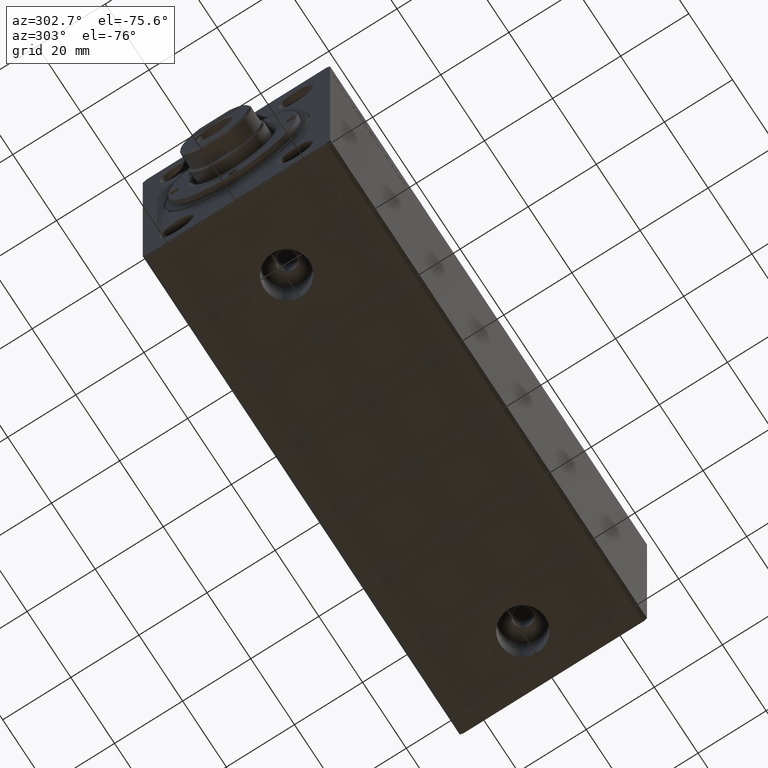
[diagram: clean part render]
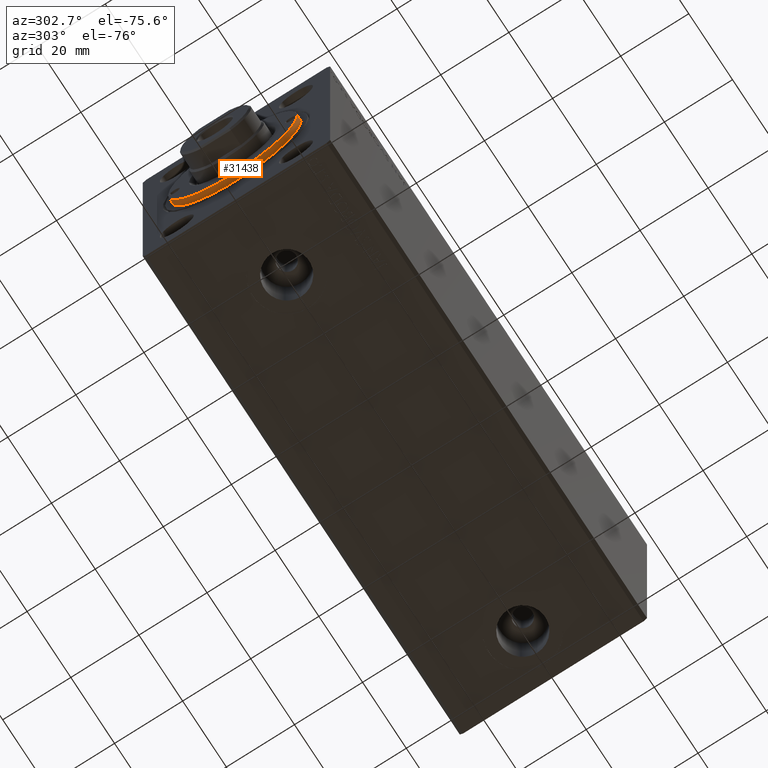
[diagram: same view with one face highlighted and labeled with its STEP entity id]
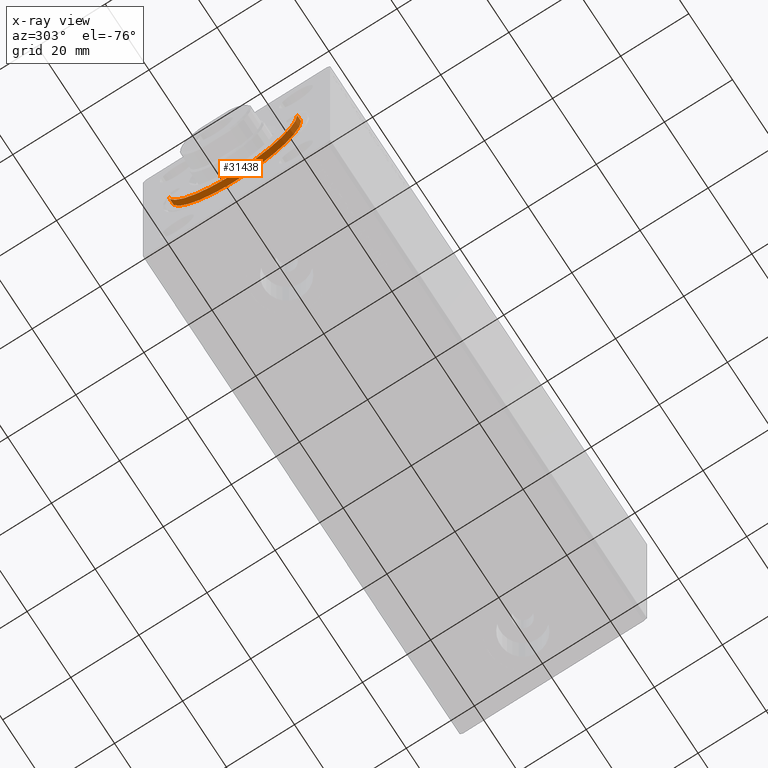
[diagram: x-ray of the same camera — body ghosted, the highlighted face saturated]
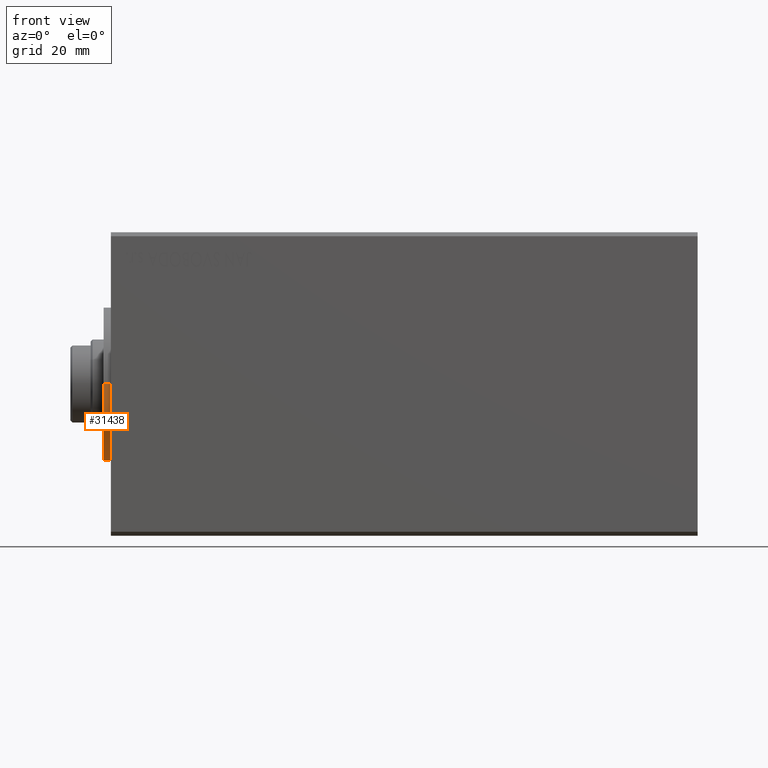
[diagram: same view with one face highlighted and labeled with its STEP entity id]
A machine part, auxiliary view. The second image highlights one B-rep face of the part: STEP entity #31438.
The next image is the same camera in x-ray: the body ghosted, the highlighted face saturated — about 0% of this face is hidden behind the body in this view.
A second angle (front view) of the same face is appended — the face is thin or edge-on in the first view.
In plain terms, the highlighted cylindrical surface (partial cylindrical patch) has radius 19 mm, axis along (1, -0, 0).
Its self-contained STEP definition (entity closure, byte-faithful):
#1752 = CIRCLE ( 'NONE', #5288, 19.00000000000000000 ) ;
#1802 = DIRECTION ( 'NONE',  ( -0.000000000000000000, -0.000000000000000000, -1.000000000000000000 ) ) ;
#2923 = CARTESIAN_POINT ( 'NONE',  ( 0.000000000000000000, 0.000000000000000000, 9.999999999999998224 ) ) ;
#4878 = EDGE_CURVE ( 'NONE', #8007, #43365, #32784, .T. ) ;
#5288 = AXIS2_PLACEMENT_3D ( 'NONE', #23741, #9491, #20173 ) ;
#7106 = CARTESIAN_POINT ( 'NONE',  ( 19.00000000000000000, 2.326828918379970970E-15, 9.999999999999998224 ) ) ;
#8007 = VERTEX_POINT ( 'NONE', #42375 ) ;
#9287 = CYLINDRICAL_SURFACE ( 'NONE', #11682, 19.00000000000000000 ) ;
#9491 = DIRECTION ( 'NONE',  ( 0.000000000000000000, 0.000000000000000000, 1.000000000000000000 ) ) ;
#11682 = AXIS2_PLACEMENT_3D ( 'NONE', #12858, #33138, #15734 ) ;
#11775 = EDGE_CURVE ( 'NONE', #17870, #8007, #30064, .T. ) ;
#12411 = VECTOR ( 'NONE', #32895, 1000.000000000000000 ) ;
#12858 = CARTESIAN_POINT ( 'NONE',  ( 0.000000000000000000, 0.000000000000000000, 9.999999999999998224 ) ) ;
#14287 = EDGE_CURVE ( 'NONE', #17870, #38912, #33349, .T. ) ;
#15734 = DIRECTION ( 'NONE',  ( -1.000000000000000000, 0.000000000000000000, 0.000000000000000000 ) ) ;
#16735 = DIRECTION ( 'NONE',  ( 1.000000000000000000, 0.000000000000000000, 0.000000000000000000 ) ) ;
#17814 = EDGE_LOOP ( 'NONE', ( #37480, #37804, #37590, #28000 ) ) ;
#17870 = VERTEX_POINT ( 'NONE', #7106 ) ;
#19400 = CARTESIAN_POINT ( 'NONE',  ( -19.00000000000000000, 0.000000000000000000, 9.999999999999998224 ) ) ;
#20173 = DIRECTION ( 'NONE',  ( 1.000000000000000000, 0.000000000000000000, 0.000000000000000000 ) ) ;
#22217 = AXIS2_PLACEMENT_3D ( 'NONE', #2923, #34337, #16735 ) ;
#23741 = CARTESIAN_POINT ( 'NONE',  ( 0.000000000000000000, 0.000000000000000000, 8.199999999999999289 ) ) ;
#28000 = ORIENTED_EDGE ( 'NONE', *, *, #4878, .F. ) ;
#30064 = CIRCLE ( 'NONE', #22217, 19.00000000000000000 ) ;
#31438 = ADVANCED_FACE ( 'NONE', ( #43660 ), #9287, .T. ) ;
#32784 = LINE ( 'NONE', #19400, #37734 ) ;
#32895 = DIRECTION ( 'NONE',  ( -0.000000000000000000, -0.000000000000000000, -1.000000000000000000 ) ) ;
#33138 = DIRECTION ( 'NONE',  ( -0.000000000000000000, -0.000000000000000000, -1.000000000000000000 ) ) ;
#33349 = LINE ( 'NONE', #39611, #12411 ) ;
#34337 = DIRECTION ( 'NONE',  ( 0.000000000000000000, 0.000000000000000000, 1.000000000000000000 ) ) ;
#36054 = CARTESIAN_POINT ( 'NONE',  ( 19.00000000000000000, 2.326828918379970970E-15, 8.199999999999999289 ) ) ;
#37480 = ORIENTED_EDGE ( 'NONE', *, *, #11775, .F. ) ;
#37590 = ORIENTED_EDGE ( 'NONE', *, *, #37752, .T. ) ;
#37734 = VECTOR ( 'NONE', #1802, 1000.000000000000000 ) ;
#37752 = EDGE_CURVE ( 'NONE', #38912, #43365, #1752, .T. ) ;
#37804 = ORIENTED_EDGE ( 'NONE', *, *, #14287, .T. ) ;
#38912 = VERTEX_POINT ( 'NONE', #36054 ) ;
#39611 = CARTESIAN_POINT ( 'NONE',  ( 19.00000000000000000, 2.326828918379970970E-15, 9.999999999999998224 ) ) ;
#39936 = CARTESIAN_POINT ( 'NONE',  ( -19.00000000000000000, 0.000000000000000000, 8.199999999999999289 ) ) ;
#42375 = CARTESIAN_POINT ( 'NONE',  ( -19.00000000000000000, 0.000000000000000000, 9.999999999999998224 ) ) ;
#43365 = VERTEX_POINT ( 'NONE', #39936 ) ;
#43660 = FACE_OUTER_BOUND ( 'NONE', #17814, .T. ) ;